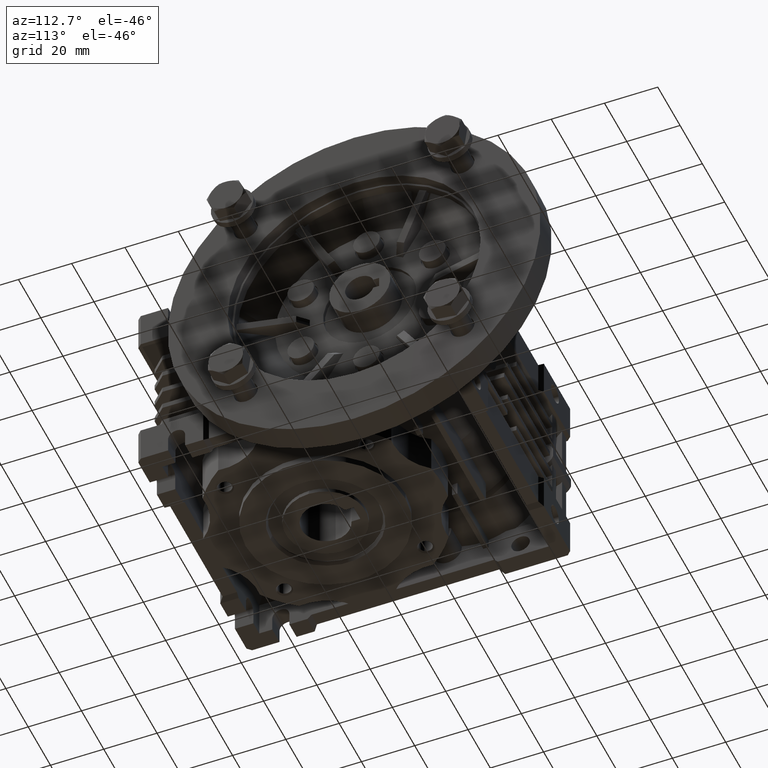
[diagram: clean part render]
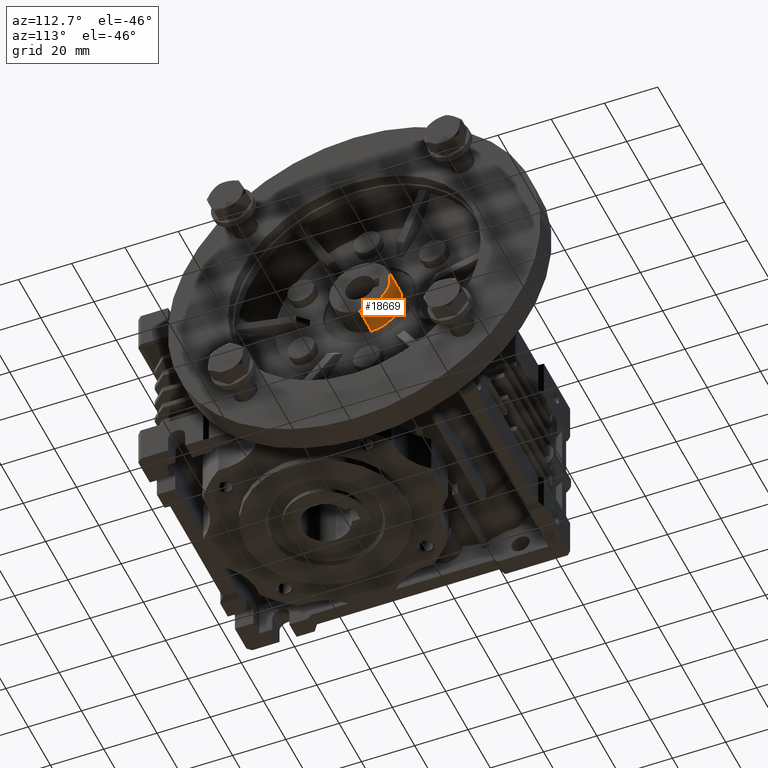
[diagram: same view with one face highlighted and labeled with its STEP entity id]
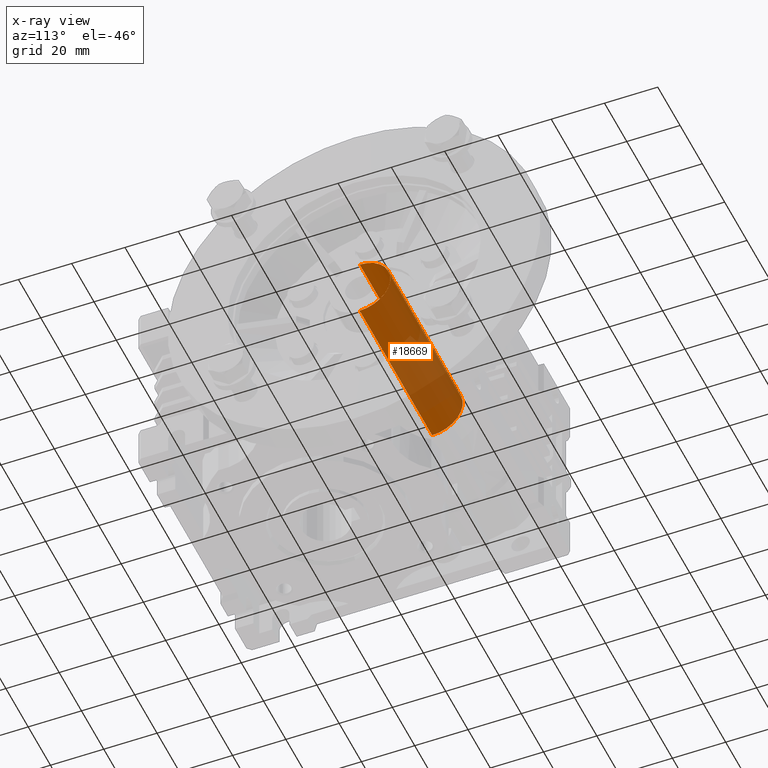
[diagram: x-ray of the same camera — body ghosted, the highlighted face saturated]
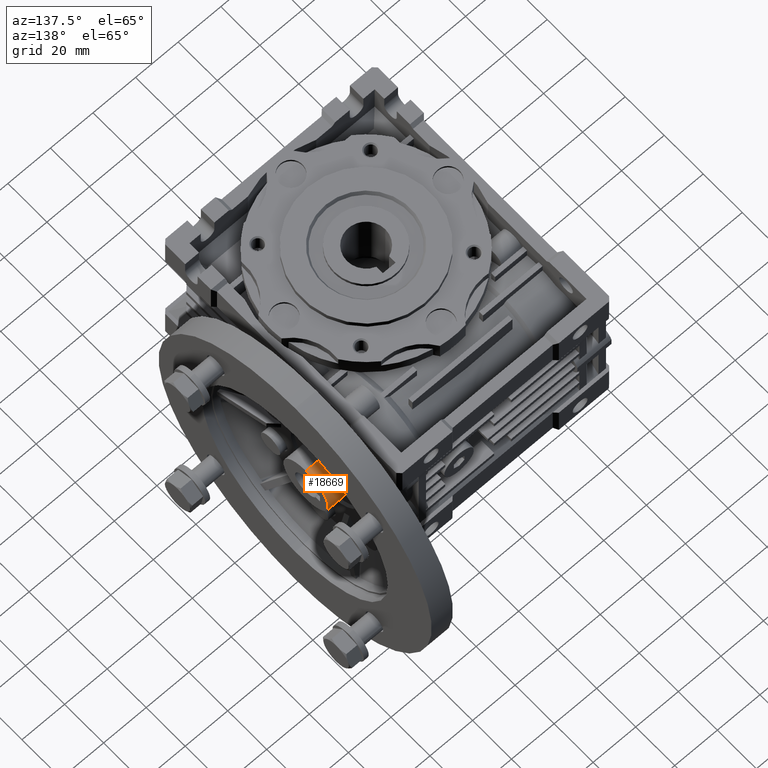
[diagram: same view with one face highlighted and labeled with its STEP entity id]
A machine part, auxiliary view. The second image highlights one B-rep face of the part: STEP entity #18669.
The next image is the same camera in x-ray: the body ghosted, the highlighted face saturated — about 42% of this face is hidden behind the body in this view.
A second angle (auxiliary view) of the same face is appended — the face is thin or edge-on in the first view.
In plain terms, the highlighted cylindrical surface (edge-blend (fillet) strip) has radius 11.5 mm, axis along (-1, 0, 0).
Its self-contained STEP definition (entity closure, byte-faithful):
#755 = ORIENTED_EDGE ( 'NONE', *, *, #5988, .F. ) ;
#1273 = VECTOR ( 'NONE', #22489, 1000.000000000000000 ) ;
#1873 = DIRECTION ( 'NONE',  ( -1.000000000000000000, 0.000000000000000000, 0.000000000000000000 ) ) ;
#3037 = EDGE_CURVE ( 'NONE', #7144, #27635, #5224, .T. ) ;
#3843 = DIRECTION ( 'NONE',  ( 0.000000000000000000, 0.000000000000000000, 1.000000000000000000 ) ) ;
#4898 = CARTESIAN_POINT ( 'NONE',  ( 0.000000000000000000, 40.00000000000000000, -11.50000000000000000 ) ) ;
#5224 = LINE ( 'NONE', #25947, #18760 ) ;
#5844 = AXIS2_PLACEMENT_3D ( 'NONE', #31127, #24335, #16398 ) ;
#5988 = EDGE_CURVE ( 'NONE', #33591, #23998, #17142, .T. ) ;
#6063 = DIRECTION ( 'NONE',  ( 0.000000000000000000, 0.000000000000000000, 1.000000000000000000 ) ) ;
#6414 = CARTESIAN_POINT ( 'NONE',  ( 65.00000000000000000, 40.00000000000000000, 0.000000000000000000 ) ) ;
#7144 = VERTEX_POINT ( 'NONE', #32901 ) ;
#9710 = CARTESIAN_POINT ( 'NONE',  ( 65.00000000000000000, 40.00000000000000000, 11.50000000000000000 ) ) ;
#10563 = CYLINDRICAL_SURFACE ( 'NONE', #22852, 11.50000000000000000 ) ;
#12138 = DIRECTION ( 'NONE',  ( 1.000000000000000000, 0.000000000000000000, 0.000000000000000000 ) ) ;
#12755 = EDGE_LOOP ( 'NONE', ( #27562, #27214, #21575, #755 ) ) ;
#13186 = AXIS2_PLACEMENT_3D ( 'NONE', #30409, #12138, #3843 ) ;
#13291 = EDGE_CURVE ( 'NONE', #27635, #23998, #32482, .T. ) ;
#15531 = EDGE_CURVE ( 'NONE', #33591, #7144, #32315, .T. ) ;
#15680 = CARTESIAN_POINT ( 'NONE',  ( 65.00000000000000000, 40.00000000000000000, 11.50000000000000000 ) ) ;
#16398 = DIRECTION ( 'NONE',  ( 0.000000000000000000, 0.000000000000000000, 1.000000000000000000 ) ) ;
#17142 = LINE ( 'NONE', #9710, #1273 ) ;
#18669 = ADVANCED_FACE ( 'NONE', ( #23683 ), #10563, .T. ) ;
#18760 = VECTOR ( 'NONE', #23532, 1000.000000000000000 ) ;
#19342 = CARTESIAN_POINT ( 'NONE',  ( 0.000000000000000000, 40.00000000000000000, 11.50000000000000000 ) ) ;
#21575 = ORIENTED_EDGE ( 'NONE', *, *, #13291, .T. ) ;
#22489 = DIRECTION ( 'NONE',  ( -1.000000000000000000, 0.000000000000000000, 0.000000000000000000 ) ) ;
#22852 = AXIS2_PLACEMENT_3D ( 'NONE', #6414, #1873, #6063 ) ;
#23532 = DIRECTION ( 'NONE',  ( -1.000000000000000000, 0.000000000000000000, 0.000000000000000000 ) ) ;
#23683 = FACE_OUTER_BOUND ( 'NONE', #12755, .T. ) ;
#23998 = VERTEX_POINT ( 'NONE', #19342 ) ;
#24335 = DIRECTION ( 'NONE',  ( -1.000000000000000000, 0.000000000000000000, 0.000000000000000000 ) ) ;
#25947 = CARTESIAN_POINT ( 'NONE',  ( 65.00000000000000000, 40.00000000000000000, -11.50000000000000000 ) ) ;
#27214 = ORIENTED_EDGE ( 'NONE', *, *, #3037, .T. ) ;
#27562 = ORIENTED_EDGE ( 'NONE', *, *, #15531, .T. ) ;
#27635 = VERTEX_POINT ( 'NONE', #4898 ) ;
#30409 = CARTESIAN_POINT ( 'NONE',  ( 0.000000000000000000, 40.00000000000000000, 0.000000000000000000 ) ) ;
#31127 = CARTESIAN_POINT ( 'NONE',  ( 65.00000000000000000, 40.00000000000000000, 0.000000000000000000 ) ) ;
#32315 = CIRCLE ( 'NONE', #5844, 11.50000000000000000 ) ;
#32482 = CIRCLE ( 'NONE', #13186, 11.50000000000000000 ) ;
#32901 = CARTESIAN_POINT ( 'NONE',  ( 65.00000000000000000, 40.00000000000000000, -11.50000000000000000 ) ) ;
#33591 = VERTEX_POINT ( 'NONE', #15680 ) ;